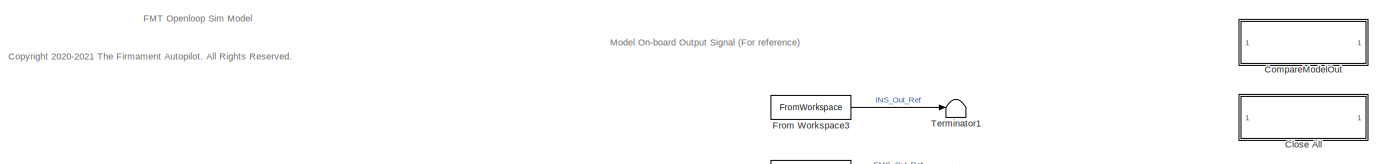
[diagram: root canvas - part 1/3, full width, top band]
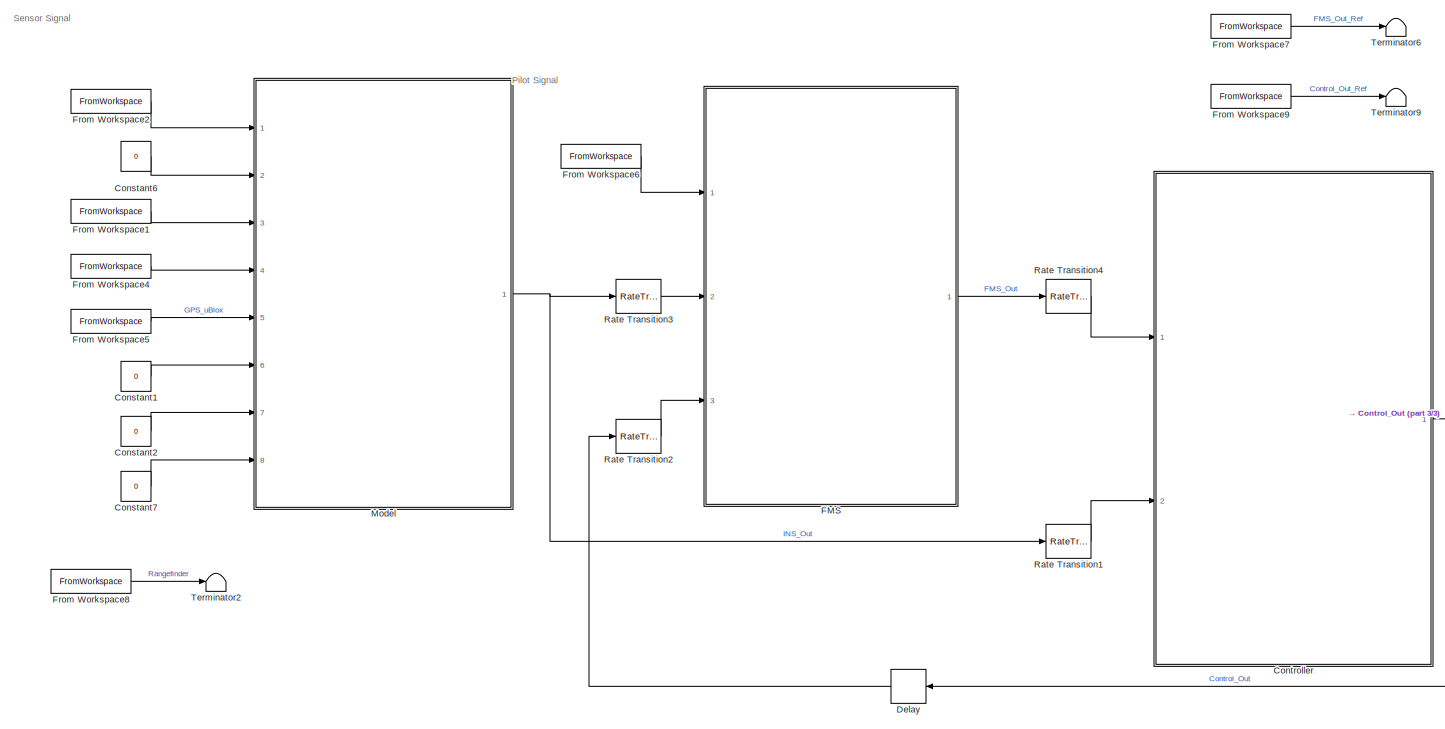
[diagram: root canvas - part 2/3, most of the canvas]
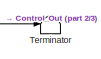
[diagram: root canvas - part 3/3, middle right region]
MODEL slx_302d28707289
KIND model
CONFIG AbsTol = auto
CONFIG EnableMultiTasking = off
CONFIG FixedStep = 0.001
CONFIG MaxStep = auto
CONFIG MinStep = auto
CONFIG RelTol = 1e-3
CONFIG SampleTimeConstraint = Unconstrained
CONFIG Solver = ode4
CONFIG SolverName = ode4
CONFIG StartTime = 0.0
CONFIG StopTime = IMUex.gyro_x.Time(end)
BLOCK [SubSystem] Close All
  OpenFcn = close all;
  Ports = []
  RequestExecContextInheritance = off
BLOCK [SubSystem] CompareModelOut
  OpenFcn = compareModelOut;
  Ports = []
  RequestExecContextInheritance = off
BLOCK [Constant] Constant1
  OutDataTypeStr = Bus: Rangefinder_Bus
  Value = 0
BLOCK [Constant] Constant2
  OutDataTypeStr = Bus: Optical_Flow_Bus
  Value = 0
BLOCK [Constant] Constant6
  OutDataTypeStr = Bus: IMU_Bus
  Value = 0
BLOCK [Constant] Constant7
  OutDataTypeStr = uint8
  Value = 0
BLOCK [ModelReference] Controller
  ModelNameDialog = Controller.slx
  ModelReferenceVersion = 1.832
  Ports = [2, 1]
BLOCK [Delay] Delay
  DelayLength = 1
  InputPortMap = u0
  Ports = [1, 1]
BLOCK [ModelReference] FMS
  ModelNameDialog = FMS.slx
  ModelReferenceVersion = 1.976
  Ports = [3, 1]
BLOCK [FromWorkspace] From Workspace1
  Interpolate = off
  OutDataTypeStr = Bus: MAG_Bus
  OutputAfterFinalValue = Holding final value
  VariableName = MAG
  ZeroCross = on
BLOCK [FromWorkspace] From Workspace2
  Interpolate = off
  OutDataTypeStr = Bus: IMU_Bus
  OutputAfterFinalValue = Holding final value
  VariableName = IMU
  ZeroCross = on
BLOCK [FromWorkspace] From Workspace3
  Interpolate = off
  OutDataTypeStr = Bus: INS_Out_Bus
  OutputAfterFinalValue = Holding final value
  VariableName = INS_Out
  ZeroCross = on
BLOCK [FromWorkspace] From Workspace4
  Interpolate = off
  OutDataTypeStr = Bus: Barometer_Bus
  OutputAfterFinalValue = Holding final value
  VariableName = Barometer
  ZeroCross = on
BLOCK [FromWorkspace] From Workspace5
  Interpolate = off
  OutDataTypeStr = Bus: GPS_uBlox_Bus
  OutputAfterFinalValue = Holding final value
  VariableName = GPS_uBlox
  ZeroCross = on
BLOCK [FromWorkspace] From Workspace6
  Interpolate = off
  OutDataTypeStr = Bus: Pilot_Cmd_Bus
  OutputAfterFinalValue = Holding final value
  VariableName = Pilot_Cmd
  ZeroCross = on
BLOCK [FromWorkspace] From Workspace7
  Interpolate = off
  OutDataTypeStr = Bus: FMS_Out_Bus
  OutputAfterFinalValue = Holding final value
  VariableName = FMS_Out
  ZeroCross = on
BLOCK [FromWorkspace] From Workspace8
  Interpolate = off
  OutDataTypeStr = Bus: Rangefinder_Bus
  OutputAfterFinalValue = Holding final value
  VariableName = Rangefinder
  ZeroCross = on
BLOCK [FromWorkspace] From Workspace9
  Interpolate = off
  OutDataTypeStr = Bus: Control_Out_Bus
  OutputAfterFinalValue = Holding final value
  VariableName = Control_Out
  ZeroCross = on
BLOCK [ModelReference] Model
  ModelNameDialog = INS.slx
  ModelReferenceVersion = 1.3350
  Ports = [8, 1]
BLOCK [RateTransition] Rate Transition1
  OutPortSampleTime = CONTROL_CONST.dt
BLOCK [RateTransition] Rate Transition2
  OutPortSampleTime = FMS_CONST.dt
BLOCK [RateTransition] Rate Transition3
  OutPortSampleTime = FMS_CONST.dt
BLOCK [RateTransition] Rate Transition4
  OutPortSampleTime = CONTROL_CONST.dt
BLOCK [Terminator] Terminator
BLOCK [Terminator] Terminator1
BLOCK [Terminator] Terminator2
BLOCK [Terminator] Terminator6
BLOCK [Terminator] Terminator9
ANNOTATION (root): <copyright redacted>
ANNOTATION (root): FMT Openloop Sim Model
ANNOTATION (root): Model On-board Output Signal (For reference)
ANNOTATION (root): Pilot Signal
ANNOTATION (root): Sensor Signal
LINE Constant1:1 -> Model:6
LINE Constant2:1 -> Model:7
LINE Constant6:1 -> Model:2
LINE Constant7:1 -> Model:8
NET Controller:1 -> Delay:1, Terminator:1
LINE Delay:1 -> Rate Transition2:1
LINE FMS:1 -> Rate Transition4:1
LINE From Workspace1:1 -> Model:3
LINE From Workspace2:1 -> Model:1
LINE From Workspace3:1 -> Terminator1:1
LINE From Workspace4:1 -> Model:4
LINE From Workspace5:1 -> Model:5
LINE From Workspace6:1 -> FMS:1
LINE From Workspace7:1 -> Terminator6:1
LINE From Workspace8:1 -> Terminator2:1
LINE From Workspace9:1 -> Terminator9:1
NET Model:1 -> Rate Transition1:1, Rate Transition3:1
LINE Rate Transition1:1 -> Controller:2
LINE Rate Transition2:1 -> FMS:3
LINE Rate Transition3:1 -> FMS:2
LINE Rate Transition4:1 -> Controller:1
note: NET lines group one-source signal fan-out (src -> all destinations, sorted); 1:1 wires keep LINE
